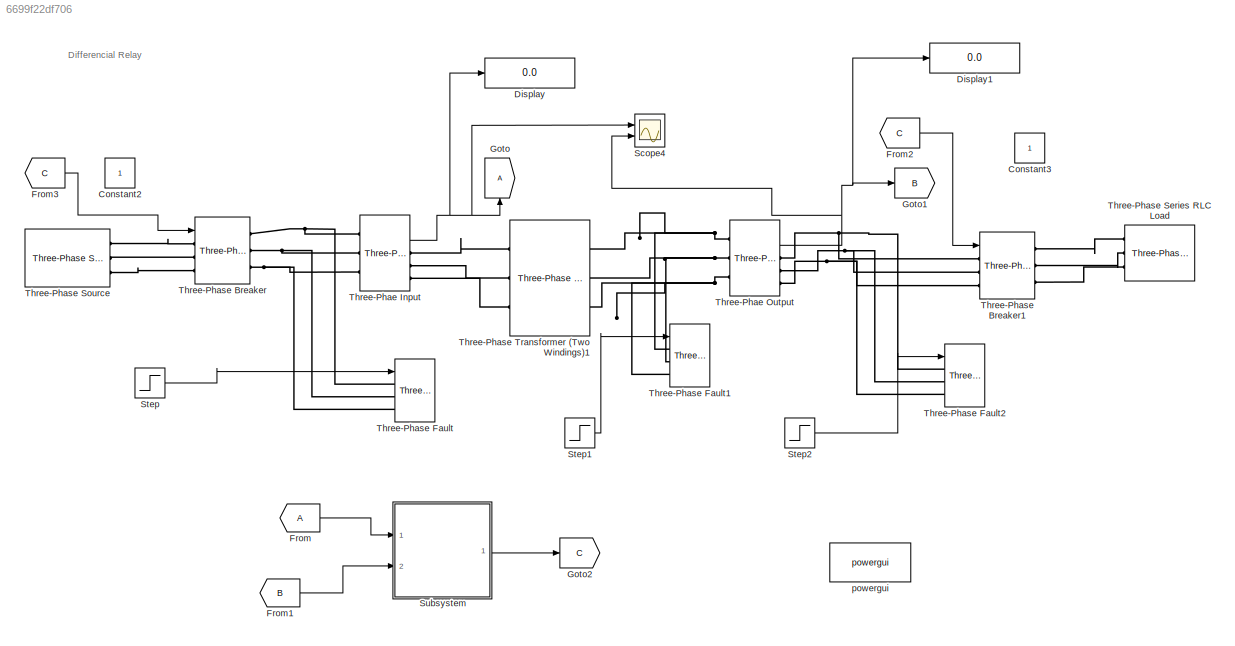
MODEL slx_6699f22df706
KIND model
CONFIG AbsTol = auto
CONFIG EnableMultiTasking = off
CONFIG FixedStep = auto
CONFIG MaxStep = 1e-4
CONFIG MinStep = auto
CONFIG RelTol = 1e-3
CONFIG SampleTimeConstraint = Unconstrained
CONFIG Solver = VariableStepAuto
CONFIG SolverName = VariableStepAuto
CONFIG StartTime = 0.0
CONFIG StopTime = 1.4
BLOCK [Constant] Constant2
BLOCK [Constant] Constant3
BLOCK [Display] Display
  Decimation = 1
  Ports = [1]
BLOCK [Display] Display1
  Decimation = 1
  Ports = [1]
BLOCK [From] From
  TagVisibility = global
BLOCK [From] From1
  GotoTag = B
  TagVisibility = global
BLOCK [From] From2
  GotoTag = C
BLOCK [From] From3
  GotoTag = C
BLOCK [Goto] Goto
  TagVisibility = global
BLOCK [Goto] Goto1
  GotoTag = B
  TagVisibility = global
BLOCK [Goto] Goto2
  GotoTag = C
BLOCK [Scope] Scope4
  NumInputPorts = 2
  Ports = [2]
  ScopeSpecificationString = Simulink.scopes.TimeScopeBlockCfg('CurrentConfiguration', extmgr.ConfigurationSet(extmgr.Configuration('Core','General UI',true,'FigureColor',[1 1 1]),extmgr.Configuration('Core','Source UI',true),extmgr.Configuration('Sources','WiredSimulink',true),extmgr.Configuration('Visuals','Time Domain',true,'SerializedDisplays',{struct('MinYLimReal','-3950.31251','MaxYLimReal','3950.39198','YLabelReal','',...<+2972ch>
BLOCK [Step] Step
  SampleTime = 0
  Time = 4
BLOCK [Step] Step1
  SampleTime = 0
  Time = 5
BLOCK [Step] Step2
  SampleTime = 0
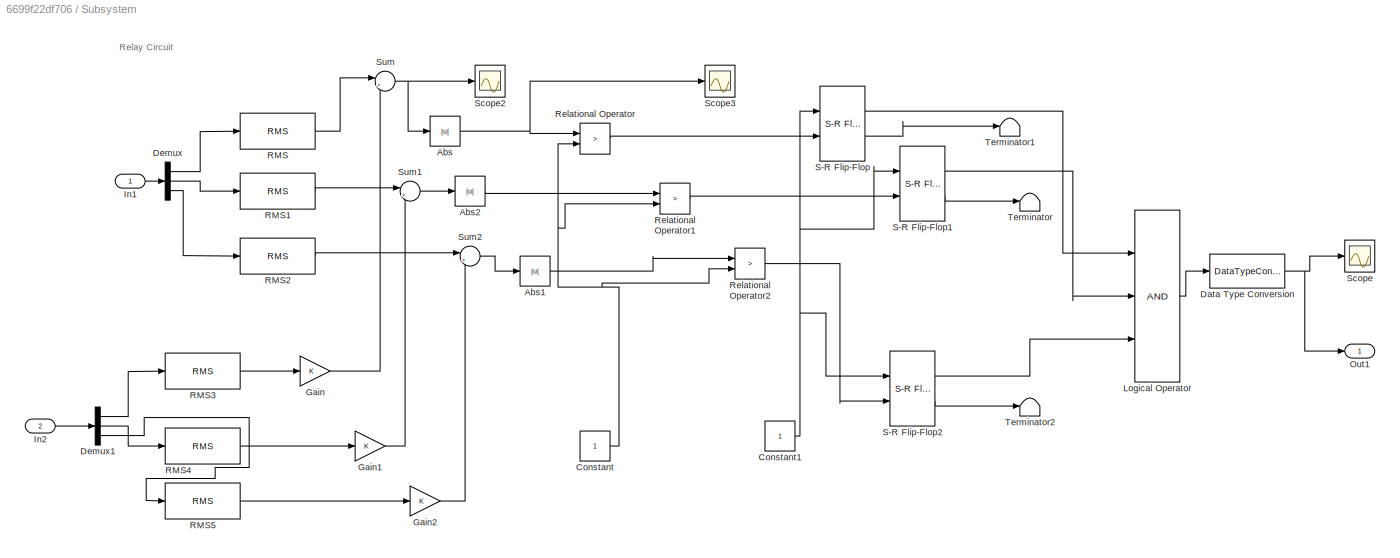
BLOCK [SubSystem] Subsystem
  Ports = [2, 1]
  RequestExecContextInheritance = off
  Variant = off
BLOCK [Abs] Subsystem/Abs
  SaturateOnIntegerOverflow = off
BLOCK [Abs] Subsystem/Abs1
  SaturateOnIntegerOverflow = off
BLOCK [Abs] Subsystem/Abs2
  SaturateOnIntegerOverflow = off
BLOCK [Constant] Subsystem/Constant
BLOCK [Constant] Subsystem/Constant1
  OutDataTypeStr = boolean
BLOCK [DataTypeConversion] Subsystem/Data Type Conversion
  OutDataTypeStr = double
  RndMeth = Floor
  SaturateOnIntegerOverflow = off
BLOCK [Demux] Subsystem/Demux
  DisplayOption = bar
  Outputs = 3
  Ports = [1, 3]
BLOCK [Demux] Subsystem/Demux1
  DisplayOption = bar
  Outputs = 3
  Ports = [1, 3]
BLOCK [Gain] Subsystem/Gain
  OutDataTypeStr = Inherit: Inherit via internal rule
  ParamDataTypeStr = Inherit: Inherit via internal rule
  SaturateOnIntegerOverflow = off
BLOCK [Gain] Subsystem/Gain1
  OutDataTypeStr = Inherit: Inherit via internal rule
  ParamDataTypeStr = Inherit: Inherit via internal rule
  SaturateOnIntegerOverflow = off
BLOCK [Gain] Subsystem/Gain2
  OutDataTypeStr = Inherit: Inherit via internal rule
  ParamDataTypeStr = Inherit: Inherit via internal rule
  SaturateOnIntegerOverflow = off
BLOCK [Inport] Subsystem/In1
  IconDisplay = Port number
BLOCK [Inport] Subsystem/In2
  IconDisplay = Port number
  Port = 2
BLOCK [Logic] Subsystem/Logical Operator
  AllPortsSameDT = off
  Inputs = 3
  OutDataTypeStr = boolean
  Ports = [3, 1]
BLOCK [Outport] Subsystem/Out1
  IconDisplay = Port number
BLOCK [Reference] Subsystem/RMS  REF=dspstat3/RMS
  Ports = [1, 1]
  SourceBlock = dspstat3/RMS
  SourceProductBaseCode = DS
  SourceProductName = DSP System Toolbox
  SourceType = RMS
  UserDataPersistent = on
BLOCK [Reference] Subsystem/RMS1  REF=dspstat3/RMS
  Ports = [1, 1]
  SourceBlock = dspstat3/RMS
  SourceProductBaseCode = DS
  SourceProductName = DSP System Toolbox
  SourceType = RMS
  UserDataPersistent = on
BLOCK [Reference] Subsystem/RMS2  REF=dspstat3/RMS
  Ports = [1, 1]
  SourceBlock = dspstat3/RMS
  SourceProductBaseCode = DS
  SourceProductName = DSP System Toolbox
  SourceType = RMS
  UserDataPersistent = on
BLOCK [Reference] Subsystem/RMS3  REF=dspstat3/RMS
  Ports = [1, 1]
  SourceBlock = dspstat3/RMS
  SourceProductBaseCode = DS
  SourceProductName = DSP System Toolbox
  SourceType = RMS
  UserDataPersistent = on
BLOCK [Reference] Subsystem/RMS4  REF=dspstat3/RMS
  Ports = [1, 1]
  SourceBlock = dspstat3/RMS
  SourceProductBaseCode = DS
  SourceProductName = DSP System Toolbox
  SourceType = RMS
  UserDataPersistent = on
BLOCK [Reference] Subsystem/RMS5  REF=dspstat3/RMS
  Ports = [1, 1]
  SourceBlock = dspstat3/RMS
  SourceProductBaseCode = DS
  SourceProductName = DSP System Toolbox
  SourceType = RMS
  UserDataPersistent = on
BLOCK [RelationalOperator] Subsystem/Relational Operator
  InputSameDT = off
  Operator = >
  OutDataTypeStr = boolean
  Ports = [2, 1]
  RndMeth = Simplest
BLOCK [RelationalOperator] Subsystem/Relational Operator1
  InputSameDT = off
  Operator = >
  OutDataTypeStr = boolean
  Ports = [2, 1]
  RndMeth = Simplest
BLOCK [RelationalOperator] Subsystem/Relational Operator2
  InputSameDT = off
  Operator = >
  OutDataTypeStr = boolean
  Ports = [2, 1]
  RndMeth = Simplest
BLOCK [Reference] Subsystem/S-R Flip-Flop  REF=simulink_extras/Flip Flops/S-R
Flip-Flop
  Ports = [2, 2]
  SourceBlock = simulink_extras/Flip Flops/S-R\nFlip-Flop
  SourceProductBaseCode = SL
  SourceProductName = Simulink
  SourceType = SRFlipFlop
BLOCK [Reference] Subsystem/S-R Flip-Flop1  REF=simulink_extras/Flip Flops/S-R
Flip-Flop
  Ports = [2, 2]
  SourceBlock = simulink_extras/Flip Flops/S-R\nFlip-Flop
  SourceProductBaseCode = SL
  SourceProductName = Simulink
  SourceType = SRFlipFlop
BLOCK [Reference] Subsystem/S-R Flip-Flop2  REF=simulink_extras/Flip Flops/S-R
Flip-Flop
  Ports = [2, 2]
  SourceBlock = simulink_extras/Flip Flops/S-R\nFlip-Flop
  SourceProductBaseCode = SL
  SourceProductName = Simulink
  SourceType = SRFlipFlop
BLOCK [Scope] Subsystem/Scope
  NumInputPorts = 1
  Ports = [1]
  ScopeSpecificationString = Simulink.scopes.TimeScopeBlockCfg('CurrentConfiguration', extmgr.ConfigurationSet(extmgr.Configuration('Core','General UI',true,'FigureColor',[1 1 1]),extmgr.Configuration('Core','Source UI',true),extmgr.Configuration('Sources','WiredSimulink',true,'DataLoggingVariableName','ScopeData1'),extmgr.Configuration('Visuals','Time Domain',true,'SerializedDisplays',{struct('MinYLimReal','0.9','MaxYLimReal...<+1533ch>
BLOCK [Scope] Subsystem/Scope2
  NumInputPorts = 1
  Ports = [1]
  ScopeSpecificationString = Simulink.scopes.TimeScopeBlockCfg('CurrentConfiguration', extmgr.ConfigurationSet(extmgr.Configuration('Core','General UI',true,'FigureColor',[1 1 1]),extmgr.Configuration('Core','Source UI',true),extmgr.Configuration('Sources','WiredSimulink',true,'DataLoggingVariableName','ScopeData3'),extmgr.Configuration('Visuals','Time Domain',true,'SerializedDisplays',{struct('MinYLimReal','-0.42183','MaxYLi...<+1660ch>
BLOCK [Scope] Subsystem/Scope3
  NumInputPorts = 1
  Ports = [1]
  ScopeSpecificationString = Simulink.scopes.TimeScopeBlockCfg('CurrentConfiguration', extmgr.ConfigurationSet(extmgr.Configuration('Core','General UI',true,'FigureColor',[1 1 1]),extmgr.Configuration('Core','Source UI',true),extmgr.Configuration('Sources','WiredSimulink',true,'DataLoggingVariableName','ScopeData4'),extmgr.Configuration('Visuals','Time Domain',true,'SerializedDisplays',{struct('MinYLimReal','-1.8189','MaxYLim...<+1583ch>
BLOCK [Sum] Subsystem/Sum
  IconShape = round
  InputSameDT = off
  Inputs = |+-
  OutDataTypeStr = Inherit: Inherit via internal rule
  Ports = [2, 1]
  SaturateOnIntegerOverflow = off
BLOCK [Sum] Subsystem/Sum1
  IconShape = round
  InputSameDT = off
  Inputs = |+-
  OutDataTypeStr = Inherit: Inherit via internal rule
  Ports = [2, 1]
  SaturateOnIntegerOverflow = off
BLOCK [Sum] Subsystem/Sum2
  IconShape = round
  InputSameDT = off
  Inputs = |+-
  OutDataTypeStr = Inherit: Inherit via internal rule
  Ports = [2, 1]
  SaturateOnIntegerOverflow = off
BLOCK [Terminator] Subsystem/Terminator
BLOCK [Terminator] Subsystem/Terminator1
BLOCK [Terminator] Subsystem/Terminator2
BLOCK [Reference] Three-Phae Input  REF=powerlib/Measurements/Three-Phase
V-I Measurement
  Ports = [0, 2, 0, 0, 0, 3, 3]
  SourceBlock = powerlib/Measurements/Three-Phase\nV-I Measurement
  SourceProductBaseCode = PS
  SourceProductName = Simscape Power Systems
  SourceType = Three-Phase VI Measurement
BLOCK [Reference] Three-Phae Output  REF=powerlib/Measurements/Three-Phase
V-I Measurement
  Ports = [0, 2, 0, 0, 0, 3, 3]
  SourceBlock = powerlib/Measurements/Three-Phase\nV-I Measurement
  SourceProductBaseCode = PS
  SourceProductName = Simscape Power Systems
  SourceType = Three-Phase VI Measurement
BLOCK [Reference] Three-Phase Breaker  REF=powerlib/Elements/Three-Phase Breaker
  Ports = [1, 0, 0, 0, 0, 3, 3]
  SourceBlock = powerlib/Elements/Three-Phase Breaker
  SourceProductBaseCode = PS
  SourceProductName = Simscape Power Systems
  SourceType = Three-Phase Breaker
BLOCK [Reference] Three-Phase Breaker1  REF=powerlib/Elements/Three-Phase Breaker
  Ports = [1, 0, 0, 0, 0, 3, 3]
  SourceBlock = powerlib/Elements/Three-Phase Breaker
  SourceProductBaseCode = PS
  SourceProductName = Simscape Power Systems
  SourceType = Three-Phase Breaker
BLOCK [Reference] Three-Phase Fault  REF=powerlib/Elements/Three-Phase Fault
  Ports = [1, 0, 0, 0, 0, 3]
  SourceBlock = powerlib/Elements/Three-Phase Fault
  SourceProductBaseCode = PS
  SourceProductName = Simscape Power Systems
  SourceType = Three-Phase Fault
BLOCK [Reference] Three-Phase Fault1  REF=powerlib/Elements/Three-Phase Fault
  Ports = [1, 0, 0, 0, 0, 3]
  SourceBlock = powerlib/Elements/Three-Phase Fault
  SourceProductBaseCode = PS
  SourceProductName = Simscape Power Systems
  SourceType = Three-Phase Fault
BLOCK [Reference] Three-Phase Fault2  REF=powerlib/Elements/Three-Phase Fault
  Ports = [1, 0, 0, 0, 0, 3]
  SourceBlock = powerlib/Elements/Three-Phase Fault
  SourceProductBaseCode = PS
  SourceProductName = Simscape Power Systems
  SourceType = Three-Phase Fault
BLOCK [Reference] Three-Phase Series RLC Load  REF=powerlib/Elements/Three-Phase
Series RLC Load
  AttributesFormatString = \n
  Ports = [0, 0, 0, 0, 0, 3]
  SourceBlock = powerlib/Elements/Three-Phase\nSeries RLC Load
  SourceProductBaseCode = PS
  SourceProductName = Simscape Power Systems
  SourceType = Three-Phase Series RLC Load
BLOCK [Reference] Three-Phase Source  REF=powerlib/Electrical
Sources/Three-Phase Source
  Ports = [0, 0, 0, 0, 0, 0, 3]
  SourceBlock = powerlib/Electrical\nSources/Three-Phase Source
  SourceProductBaseCode = PS
  SourceProductName = Simscape Power Systems
  SourceType = Three-Phase Source
BLOCK [Reference] Three-Phase Transformer (Two Windings)1  REF=powerlib/Elements/Three-Phase
Transformer
(Two Windings)
  Ports = [0, 0, 0, 0, 0, 3, 3]
  SourceBlock = powerlib/Elements/Three-Phase\nTransformer\n(Two Windings)
  SourceProductBaseCode = PS
  SourceProductName = Simscape Power Systems
  SourceType = Three-Phase Transformer (Two Windings)
BLOCK [Reference] powergui  REF=powerlib/powergui
  Ports = []
  Priority = 1
  SourceBlock = powerlib/powergui
  SourceProductBaseCode = PS
  SourceProductName = Simscape Power Systems
  SourceType = PSB option menu block
ANNOTATION (root): Differencial Relay
ANNOTATION Subsystem: Relay Circuit
LINE From1:1 -> Subsystem:2
LINE From2:1 -> Three-Phase Breaker1:1
LINE From3:1 -> Three-Phase Breaker:1
LINE From:1 -> Subsystem:1
LINE Step1:1 -> Three-Phase Fault1:1
LINE Step2:1 -> Three-Phase Fault2:1
LINE Step:1 -> Three-Phase Fault:1
LINE Subsystem/Abs1:1 -> Subsystem/Relational Operator2:1
LINE Subsystem/Abs2:1 -> Subsystem/Relational Operator1:1
NET Subsystem/Abs:1 -> Subsystem/Relational Operator:1, Subsystem/Scope3:1
NET Subsystem/Constant1:1 -> Subsystem/S-R Flip-Flop1:1, Subsystem/S-R Flip-Flop2:1, Subsystem/S-R Flip-Flop:1
NET Subsystem/Constant:1 -> Subsystem/Relational Operator1:2, Subsystem/Relational Operator2:2, Subsystem/Relational Operator:2
NET Subsystem/Data Type Conversion:1 -> Subsystem/Out1:1, Subsystem/Scope:1
LINE Subsystem/Demux1:1 -> Subsystem/RMS3:1
LINE Subsystem/Demux1:2 -> Subsystem/RMS4:1
LINE Subsystem/Demux1:3 -> Subsystem/RMS5:1
LINE Subsystem/Demux:1 -> Subsystem/RMS:1
LINE Subsystem/Demux:2 -> Subsystem/RMS1:1
LINE Subsystem/Demux:3 -> Subsystem/RMS2:1
LINE Subsystem/Gain1:1 -> Subsystem/Sum1:2
LINE Subsystem/Gain2:1 -> Subsystem/Sum2:2
LINE Subsystem/Gain:1 -> Subsystem/Sum:2
LINE Subsystem/In1:1 -> Subsystem/Demux:1
LINE Subsystem/In2:1 -> Subsystem/Demux1:1
LINE Subsystem/Logical Operator:1 -> Subsystem/Data Type Conversion:1
LINE Subsystem/RMS1:1 -> Subsystem/Sum1:1
LINE Subsystem/RMS2:1 -> Subsystem/Sum2:1
LINE Subsystem/RMS3:1 -> Subsystem/Gain:1
LINE Subsystem/RMS4:1 -> Subsystem/Gain1:1
LINE Subsystem/RMS5:1 -> Subsystem/Gain2:1
LINE Subsystem/RMS:1 -> Subsystem/Sum:1
LINE Subsystem/Relational Operator1:1 -> Subsystem/S-R Flip-Flop1:2
LINE Subsystem/Relational Operator2:1 -> Subsystem/S-R Flip-Flop2:2
LINE Subsystem/Relational Operator:1 -> Subsystem/S-R Flip-Flop:2
LINE Subsystem/S-R Flip-Flop1:1 -> Subsystem/Logical Operator:2
LINE Subsystem/S-R Flip-Flop1:2 -> Subsystem/Terminator:1
LINE Subsystem/S-R Flip-Flop2:1 -> Subsystem/Logical Operator:3
LINE Subsystem/S-R Flip-Flop2:2 -> Subsystem/Terminator2:1
LINE Subsystem/S-R Flip-Flop:1 -> Subsystem/Logical Operator:1
LINE Subsystem/S-R Flip-Flop:2 -> Subsystem/Terminator1:1
LINE Subsystem/Sum1:1 -> Subsystem/Abs2:1
LINE Subsystem/Sum2:1 -> Subsystem/Abs1:1
NET Subsystem/Sum:1 -> Subsystem/Abs:1, Subsystem/Scope2:1
LINE Subsystem:1 -> Goto2:1
NET Three-Phae Input:2 -> Display:1, Goto:1, Scope4:1
NET Three-Phae Output:2 -> Display1:1, Goto1:1, Scope4:2
PNET net1: Three-Phae Input:LConn1 -- Three-Phase Breaker:RConn1 -- Three-Phase Fault:LConn1
PNET net2: Three-Phae Input:LConn2 -- Three-Phase Breaker:RConn2 -- Three-Phase Fault:LConn2
PNET net3: Three-Phae Input:LConn3 -- Three-Phase Breaker:RConn3 -- Three-Phase Fault:LConn3
PLINE Three-Phae Input:RConn1 -- Three-Phase Transformer (Two Windings)1:LConn1
PLINE Three-Phae Input:RConn2 -- Three-Phase Transformer (Two Windings)1:LConn2
PLINE Three-Phae Input:RConn3 -- Three-Phase Transformer (Two Windings)1:LConn3
PNET net4: Three-Phae Output:LConn1 -- Three-Phase Fault1:LConn1 -- Three-Phase Transformer (Two Windings)1:RConn1
PNET net5: Three-Phae Output:LConn2 -- Three-Phase Fault1:LConn2 -- Three-Phase Transformer (Two Windings)1:RConn2
PNET net6: Three-Phae Output:LConn3 -- Three-Phase Fault1:LConn3 -- Three-Phase Transformer (Two Windings)1:RConn3
PNET net7: Three-Phae Output:RConn1 -- Three-Phase Breaker1:LConn1 -- Three-Phase Fault2:LConn1
PNET net8: Three-Phae Output:RConn2 -- Three-Phase Breaker1:LConn2 -- Three-Phase Fault2:LConn2
PNET net9: Three-Phae Output:RConn3 -- Three-Phase Breaker1:LConn3 -- Three-Phase Fault2:LConn3
PLINE Three-Phase Breaker1:RConn1 -- Three-Phase Series RLC Load:LConn1
PLINE Three-Phase Breaker1:RConn2 -- Three-Phase Series RLC Load:LConn2
PLINE Three-Phase Breaker1:RConn3 -- Three-Phase Series RLC Load:LConn3
PLINE Three-Phase Breaker:LConn1 -- Three-Phase Source:RConn1
PLINE Three-Phase Breaker:LConn2 -- Three-Phase Source:RConn2
PLINE Three-Phase Breaker:LConn3 -- Three-Phase Source:RConn3
note: NET lines group one-source signal fan-out (src -> all destinations, sorted); 1:1 wires keep LINE; PNET lines group multi-terminal physical nets as a canonical sorted terminal list (undirected conserving connections); 2-terminal nets keep the pairwise PLINE form
